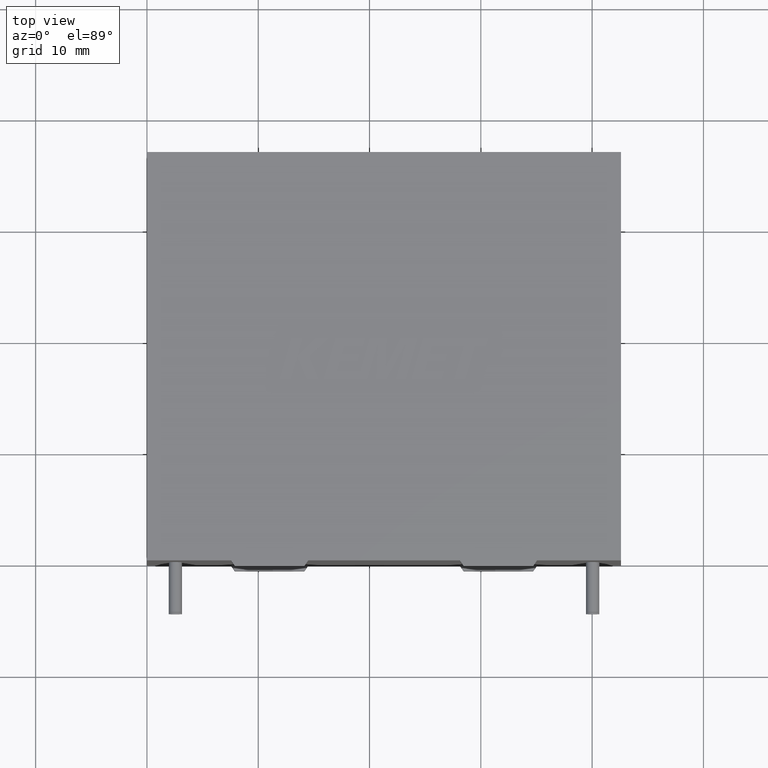
[diagram: clean part render]
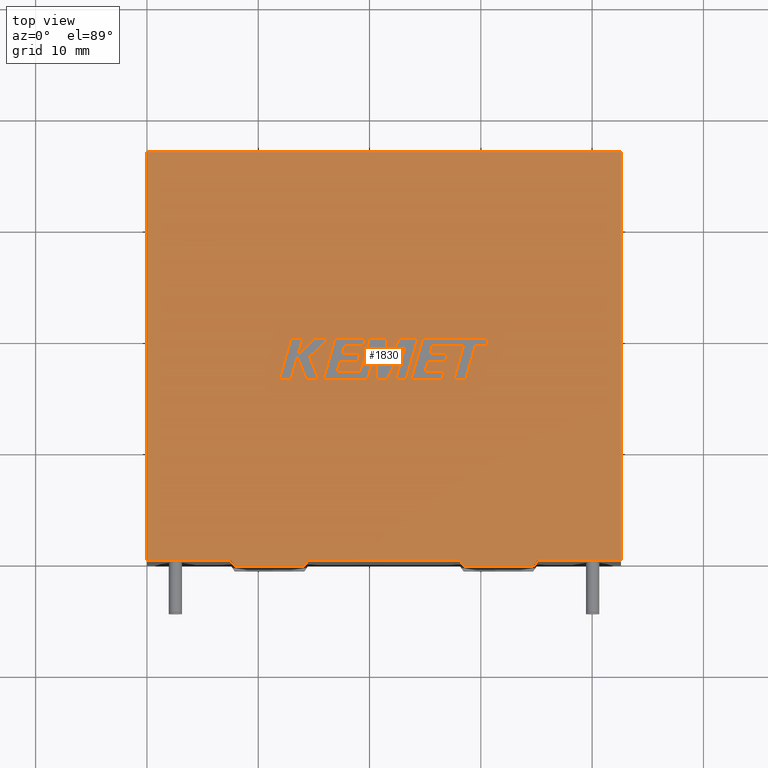
[diagram: same view with one face highlighted and labeled with its STEP entity id]
A machine part, top view. The second image highlights one B-rep face of the part: STEP entity #1830.
In plain terms, the highlighted planar face has unit normal (0, 0, -1).
Its self-contained STEP definition (entity closure, byte-faithful):
#15 = FACE_OUTER_BOUND ( 'NONE', #2892, .T. ) ;
#19 = EDGE_CURVE ( 'NONE', #3004, #1561, #795, .T. ) ;
#40 = EDGE_CURVE ( 'NONE', #1235, #608, #2765, .T. ) ;
#56 = CARTESIAN_POINT ( 'NONE',  ( 0.0000000000000000000, 36.70000000000000300, 28.39999999999999900 ) ) ;
#61 = VECTOR ( 'NONE', #589, 1000.000000000000100 ) ;
#91 = VERTEX_POINT ( 'NONE', #3321 ) ;
#101 = LINE ( 'NONE', #1901, #328 ) ;
#112 = CARTESIAN_POINT ( 'NONE',  ( 0.0000000000000000000, 0.0000000000000000000, 28.39999999999999900 ) ) ;
#125 = VECTOR ( 'NONE', #1941, 1000.000000000000000 ) ;
#192 = DIRECTION ( 'NONE',  ( 1.000000000000000000, -1.737252916222827300E-017, 0.0000000000000000000 ) ) ;
#287 = DIRECTION ( 'NONE',  ( 0.0000000000000000000, 0.0000000000000000000, -1.000000000000000000 ) ) ;
#328 = VECTOR ( 'NONE', #2253, 1000.000000000000000 ) ;
#334 = ORIENTED_EDGE ( 'NONE', *, *, #1417, .T. ) ;
#337 = VERTEX_POINT ( 'NONE', #1807 ) ;
#345 = VECTOR ( 'NONE', #779, 1000.000000000000000 ) ;
#375 = CARTESIAN_POINT ( 'NONE',  ( 35.04999999999999700, 4.623041666781258400E-016, 28.39999999999999900 ) ) ;
#383 = CARTESIAN_POINT ( 'NONE',  ( 28.45909999999999600, -0.4999999999999996700, 28.39999999999999900 ) ) ;
#458 = EDGE_CURVE ( 'NONE', #1746, #2071, #1104, .T. ) ;
#472 = LINE ( 'NONE', #2797, #1351 ) ;
#513 = CARTESIAN_POINT ( 'NONE',  ( 42.60000000000000100, 0.0000000000000000000, 28.39999999999999900 ) ) ;
#589 = DIRECTION ( 'NONE',  ( -0.5734623443633275500, 0.8192319205190410300, 0.0000000000000000000 ) ) ;
#608 = VERTEX_POINT ( 'NONE', #616 ) ;
#616 = CARTESIAN_POINT ( 'NONE',  ( 14.14090000000000200, -0.4999999999999996700, 28.39999999999999900 ) ) ;
#701 = ORIENTED_EDGE ( 'NONE', *, *, #458, .T. ) ;
#762 = ORIENTED_EDGE ( 'NONE', *, *, #1710, .T. ) ;
#779 = DIRECTION ( 'NONE',  ( 0.0000000000000000000, 1.000000000000000000, 0.0000000000000000000 ) ) ;
#795 = LINE ( 'NONE', #2720, #125 ) ;
#848 = VECTOR ( 'NONE', #2934, 1000.000000000000000 ) ;
#858 = CARTESIAN_POINT ( 'NONE',  ( 0.0000000000000000000, 0.0000000000000000000, 28.39999999999999900 ) ) ;
#894 = DIRECTION ( 'NONE',  ( 1.000000000000000000, 0.0000000000000000000, 0.0000000000000000000 ) ) ;
#927 = EDGE_CURVE ( 'NONE', #2971, #3004, #1933, .T. ) ;
#943 = VECTOR ( 'NONE', #192, 1000.000000000000000 ) ;
#1015 = CARTESIAN_POINT ( 'NONE',  ( 14.49090000000000200, 8.873117150882191100E-016, 28.39999999999999900 ) ) ;
#1104 = LINE ( 'NONE', #858, #2347 ) ;
#1235 = VERTEX_POINT ( 'NONE', #1407 ) ;
#1348 = CARTESIAN_POINT ( 'NONE',  ( 0.0000000000000000000, 0.0000000000000000000, 28.39999999999999900 ) ) ;
#1351 = VECTOR ( 'NONE', #1770, 1000.000000000000200 ) ;
#1356 = ORIENTED_EDGE ( 'NONE', *, *, #1524, .F. ) ;
#1407 = CARTESIAN_POINT ( 'NONE',  ( 7.900000000000000400, -0.4999999999999995600, 28.39999999999999900 ) ) ;
#1417 = EDGE_CURVE ( 'NONE', #608, #1746, #2404, .T. ) ;
#1434 = ORIENTED_EDGE ( 'NONE', *, *, #3275, .T. ) ;
#1498 = DIRECTION ( 'NONE',  ( 0.5734623443633275500, 0.8192319205190410300, 0.0000000000000000000 ) ) ;
#1506 = LINE ( 'NONE', #2031, #2483 ) ;
#1512 = VERTEX_POINT ( 'NONE', #2096 ) ;
#1524 = EDGE_CURVE ( 'NONE', #2464, #1512, #3049, .T. ) ;
#1561 = VERTEX_POINT ( 'NONE', #56 ) ;
#1686 = LINE ( 'NONE', #3164, #61 ) ;
#1710 = EDGE_CURVE ( 'NONE', #1561, #337, #1506, .T. ) ;
#1746 = VERTEX_POINT ( 'NONE', #1015 ) ;
#1770 = DIRECTION ( 'NONE',  ( 0.5734623443633287700, -0.8192319205190400400, 0.0000000000000000000 ) ) ;
#1785 = CARTESIAN_POINT ( 'NONE',  ( 42.60000000000000100, 0.0000000000000000000, 28.39999999999999900 ) ) ;
#1803 = ORIENTED_EDGE ( 'NONE', *, *, #2869, .T. ) ;
#1807 = CARTESIAN_POINT ( 'NONE',  ( 0.0000000000000000000, 0.0000000000000000000, 28.39999999999999900 ) ) ;
#1824 = CARTESIAN_POINT ( 'NONE',  ( 35.04999999999998300, 0.0000000000000000000, 28.39999999999999900 ) ) ;
#1830 = ADVANCED_FACE ( 'NONE', ( #15 ), #2334, .F. ) ;
#1832 = ORIENTED_EDGE ( 'NONE', *, *, #40, .T. ) ;
#1901 = CARTESIAN_POINT ( 'NONE',  ( 34.69999999999999600, -0.4999999999999995600, 28.39999999999999900 ) ) ;
#1919 = ORIENTED_EDGE ( 'NONE', *, *, #2786, .F. ) ;
#1927 = CARTESIAN_POINT ( 'NONE',  ( 7.900000000000000400, -0.4999999999999995600, 28.39999999999999900 ) ) ;
#1933 = LINE ( 'NONE', #1785, #345 ) ;
#1941 = DIRECTION ( 'NONE',  ( -1.000000000000000000, -0.0000000000000000000, -0.0000000000000000000 ) ) ;
#2000 = EDGE_CURVE ( 'NONE', #3236, #2071, #1686, .T. ) ;
#2031 = CARTESIAN_POINT ( 'NONE',  ( 0.0000000000000000000, 0.0000000000000000000, 28.39999999999999900 ) ) ;
#2071 = VERTEX_POINT ( 'NONE', #2921 ) ;
#2096 = CARTESIAN_POINT ( 'NONE',  ( 34.69999999999999600, -0.4999999999999995600, 28.39999999999999900 ) ) ;
#2103 = AXIS2_PLACEMENT_3D ( 'NONE', #2842, #287, #2577 ) ;
#2253 = DIRECTION ( 'NONE',  ( -1.000000000000000000, -1.737252916222827300E-017, 0.0000000000000000000 ) ) ;
#2308 = CARTESIAN_POINT ( 'NONE',  ( 42.60000000000000100, 36.70000000000000300, 28.39999999999999900 ) ) ;
#2334 = PLANE ( 'NONE',  #2103 ) ;
#2347 = VECTOR ( 'NONE', #2390, 1000.000000000000000 ) ;
#2357 = VECTOR ( 'NONE', #2582, 1000.000000000000200 ) ;
#2383 = ORIENTED_EDGE ( 'NONE', *, *, #19, .T. ) ;
#2390 = DIRECTION ( 'NONE',  ( 1.000000000000000000, 0.0000000000000000000, 0.0000000000000000000 ) ) ;
#2404 = LINE ( 'NONE', #3054, #3092 ) ;
#2464 = VERTEX_POINT ( 'NONE', #1824 ) ;
#2469 = ORIENTED_EDGE ( 'NONE', *, *, #927, .T. ) ;
#2483 = VECTOR ( 'NONE', #3330, 1000.000000000000000 ) ;
#2565 = EDGE_CURVE ( 'NONE', #337, #91, #2898, .T. ) ;
#2577 = DIRECTION ( 'NONE',  ( -1.000000000000000000, 0.0000000000000000000, -0.0000000000000000000 ) ) ;
#2582 = DIRECTION ( 'NONE',  ( -0.5734623443633287700, -0.8192319205190400400, 0.0000000000000000000 ) ) ;
#2693 = ORIENTED_EDGE ( 'NONE', *, *, #2565, .T. ) ;
#2720 = CARTESIAN_POINT ( 'NONE',  ( 0.0000000000000000000, 36.70000000000000300, 28.39999999999999900 ) ) ;
#2726 = VECTOR ( 'NONE', #894, 1000.000000000000000 ) ;
#2765 = LINE ( 'NONE', #1927, #943 ) ;
#2786 = EDGE_CURVE ( 'NONE', #1512, #3236, #101, .T. ) ;
#2797 = CARTESIAN_POINT ( 'NONE',  ( 7.550000000000000700, 4.623041666781258400E-016, 28.39999999999999900 ) ) ;
#2842 = CARTESIAN_POINT ( 'NONE',  ( 0.0000000000000000000, 0.0000000000000000000, 28.39999999999999900 ) ) ;
#2869 = EDGE_CURVE ( 'NONE', #91, #1235, #472, .T. ) ;
#2892 = EDGE_LOOP ( 'NONE', ( #762, #2693, #1803, #1832, #334, #701, #2896, #1919, #1356, #1434, #2469, #2383 ) ) ;
#2896 = ORIENTED_EDGE ( 'NONE', *, *, #2000, .F. ) ;
#2898 = LINE ( 'NONE', #1348, #848 ) ;
#2921 = CARTESIAN_POINT ( 'NONE',  ( 28.10909999999999800, 8.873117150882191100E-016, 28.39999999999999900 ) ) ;
#2934 = DIRECTION ( 'NONE',  ( 1.000000000000000000, 0.0000000000000000000, 0.0000000000000000000 ) ) ;
#2971 = VERTEX_POINT ( 'NONE', #513 ) ;
#3004 = VERTEX_POINT ( 'NONE', #2308 ) ;
#3049 = LINE ( 'NONE', #375, #2357 ) ;
#3054 = CARTESIAN_POINT ( 'NONE',  ( 14.14090000000000200, -0.4999999999999996700, 28.39999999999999900 ) ) ;
#3092 = VECTOR ( 'NONE', #1498, 1000.000000000000100 ) ;
#3164 = CARTESIAN_POINT ( 'NONE',  ( 28.45909999999999600, -0.4999999999999996700, 28.39999999999999900 ) ) ;
#3236 = VERTEX_POINT ( 'NONE', #383 ) ;
#3275 = EDGE_CURVE ( 'NONE', #2464, #2971, #3336, .T. ) ;
#3321 = CARTESIAN_POINT ( 'NONE',  ( 7.550000000000000700, 0.0000000000000000000, 28.39999999999999900 ) ) ;
#3330 = DIRECTION ( 'NONE',  ( -0.0000000000000000000, -1.000000000000000000, -0.0000000000000000000 ) ) ;
#3336 = LINE ( 'NONE', #112, #2726 ) ;